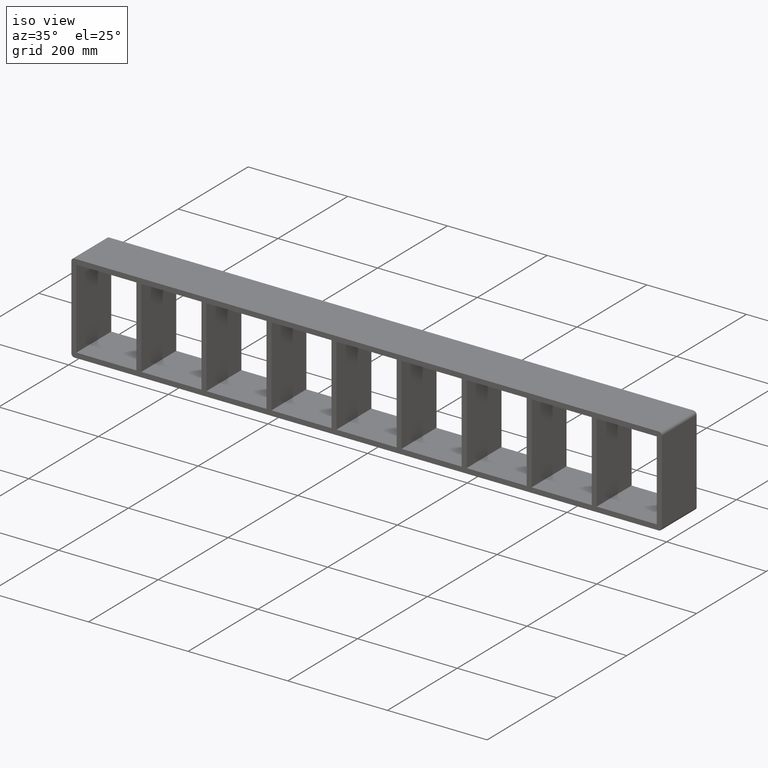
[diagram: clean part render]
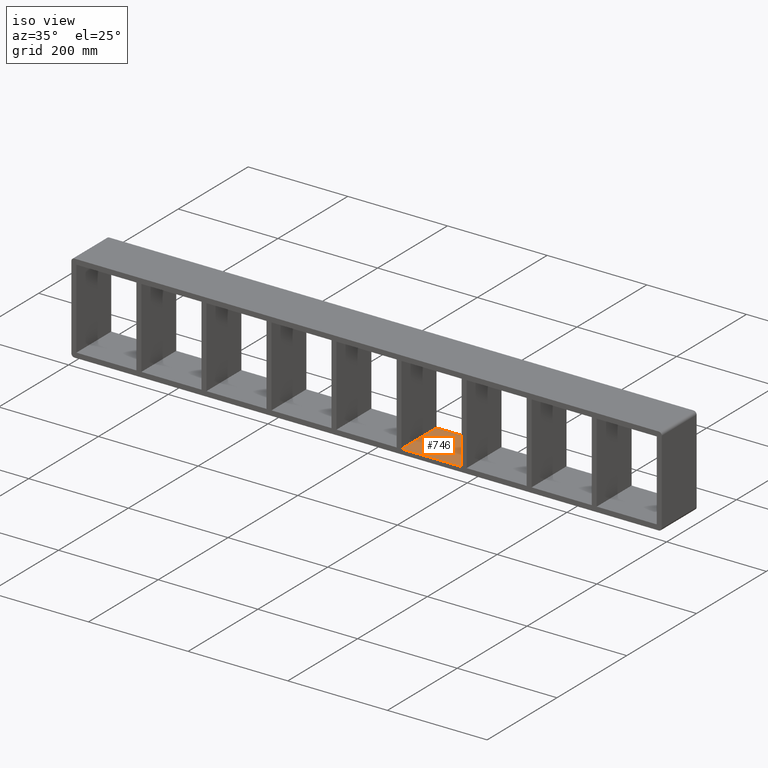
[diagram: same view with one face highlighted and labeled with its STEP entity id]
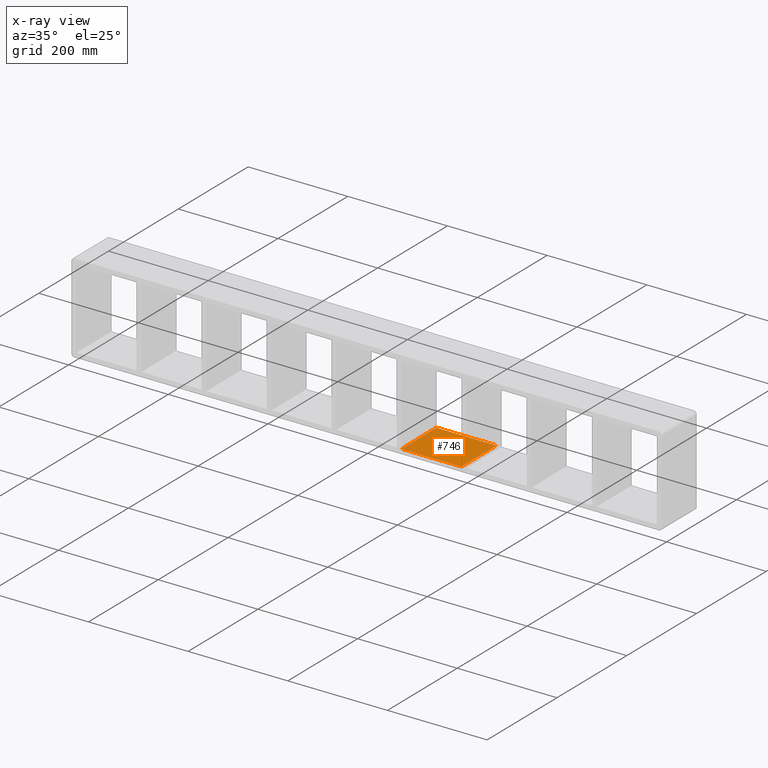
[diagram: x-ray of the same camera — body ghosted, the highlighted face saturated]
A machine part, iso view. The second image highlights one B-rep face of the part: STEP entity #746.
The next image is the same camera in x-ray: the body ghosted, the highlighted face saturated — about 0% of this face is hidden behind the body in this view.
In plain terms, the highlighted planar face has unit normal (0, 0, -1).
Its self-contained STEP definition (entity closure, byte-faithful):
#233=CARTESIAN_POINT('',(190.74999999998926,-3.0,-79.750000000000014));
#234=VERTEX_POINT('',#233);
#251=CARTESIAN_POINT('',(190.74999999998926,97.0,-79.750000000000014));
#252=VERTEX_POINT('',#251);
#259=CARTESIAN_POINT('',(190.74999999998923,-3.0,-79.750000000000014));
#260=DIRECTION('',(0.0,1.0,0.0));
#261=VECTOR('',#260,100.0);
#262=LINE('',#259,#261);
#263=EDGE_CURVE('',#234,#252,#262,.T.);
#355=CARTESIAN_POINT('',(70.24999999999369,-3.0,-79.750000000003766));
#356=VERTEX_POINT('',#355);
#363=CARTESIAN_POINT('',(70.24999999999369,97.0,-79.750000000003766));
#364=VERTEX_POINT('',#363);
#365=CARTESIAN_POINT('',(70.249999999993662,97.0,-79.750000000000014));
#366=DIRECTION('',(0.0,-1.0,0.0));
#367=VECTOR('',#366,100.0);
#368=LINE('',#365,#367);
#369=EDGE_CURVE('',#364,#356,#368,.T.);
#725=CARTESIAN_POINT('',(582.25,0.0,-79.750000000000014));
#726=DIRECTION('',(0.0,0.0,-1.0));
#727=DIRECTION('',(-1.0,0.0,0.0));
#728=AXIS2_PLACEMENT_3D('',#725,#726,#727);
#729=PLANE('',#728);
#730=ORIENTED_EDGE('',*,*,#263,.T.);
#731=CARTESIAN_POINT('',(70.24999999999369,97.0,-79.750000000000014));
#732=DIRECTION('',(1.0,0.0,0.0));
#733=VECTOR('',#732,120.49999999999557);
#734=LINE('',#731,#733);
#735=EDGE_CURVE('',#364,#252,#734,.T.);
#736=ORIENTED_EDGE('',*,*,#735,.F.);
#737=ORIENTED_EDGE('',*,*,#369,.T.);
#738=CARTESIAN_POINT('',(190.74999999998926,-3.0,-79.750000000000014));
#739=DIRECTION('',(-1.0,0.0,0.0));
#740=VECTOR('',#739,120.49999999999557);
#741=LINE('',#738,#740);
#742=EDGE_CURVE('',#234,#356,#741,.T.);
#743=ORIENTED_EDGE('',*,*,#742,.F.);
#744=EDGE_LOOP('',(#730,#736,#737,#743));
#745=FACE_OUTER_BOUND('',#744,.T.);
#746=ADVANCED_FACE('',(#745),#729,.F.);